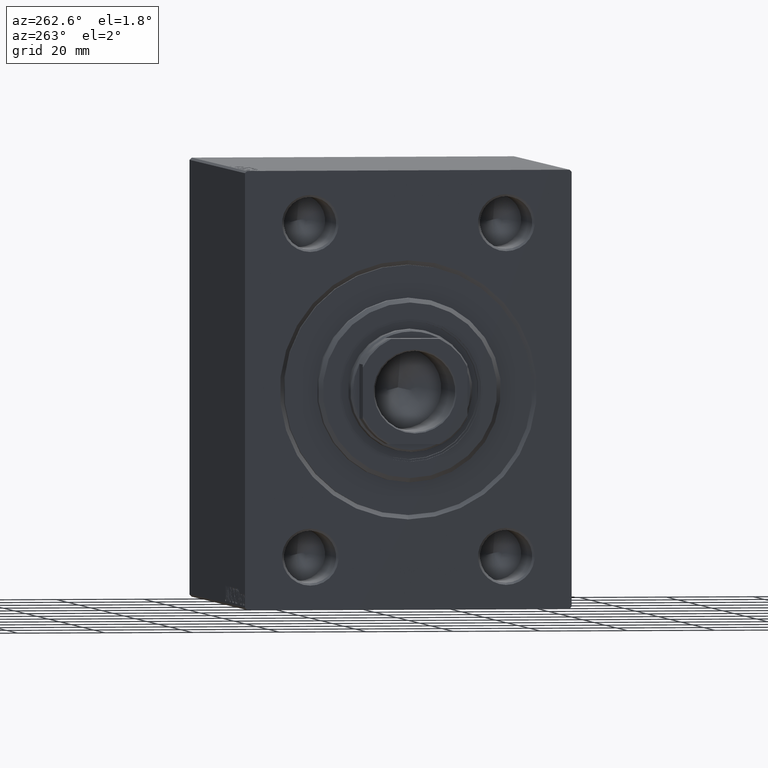
[diagram: clean part render]
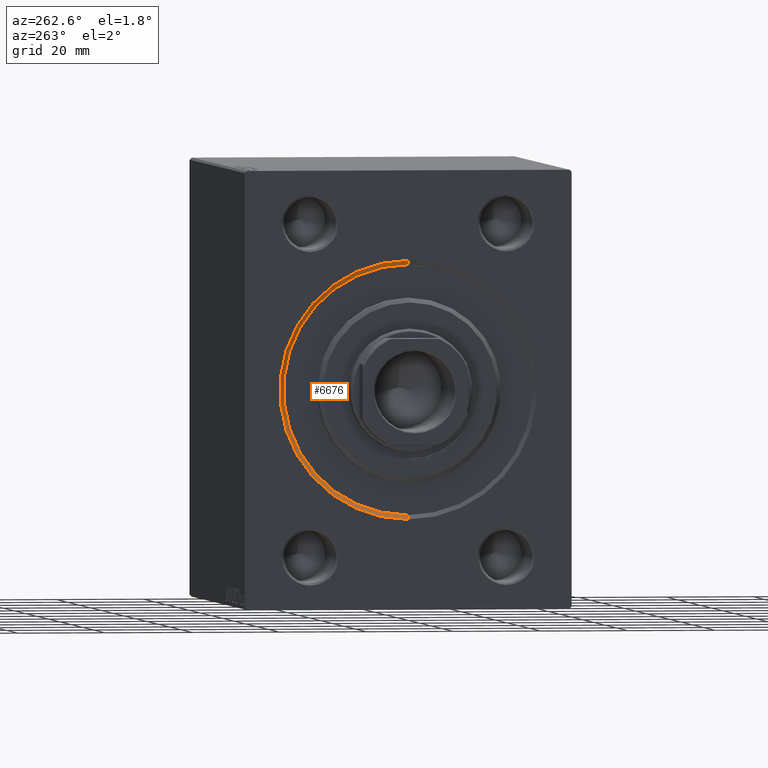
[diagram: same view with one face highlighted and labeled with its STEP entity id]
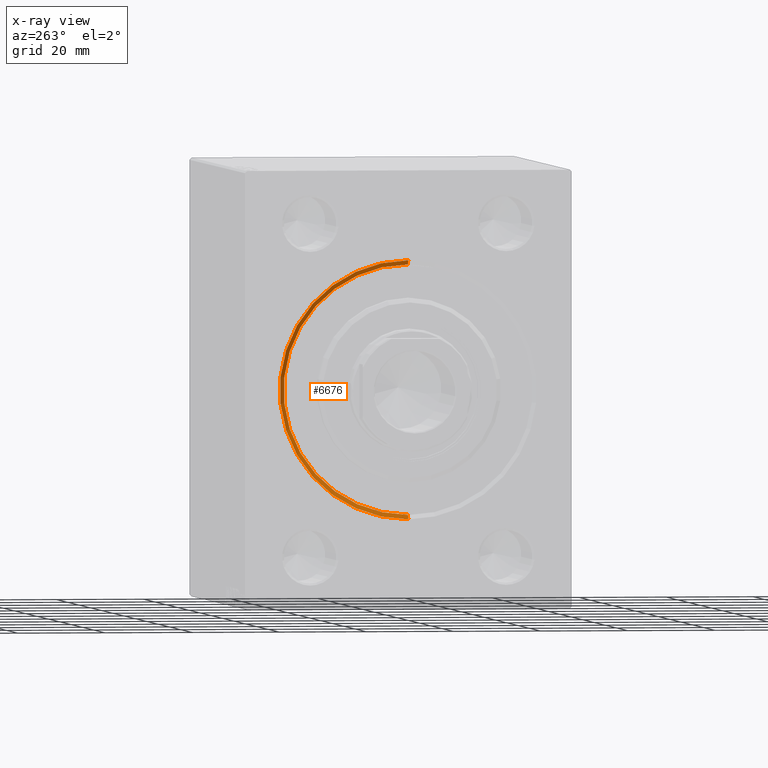
[diagram: x-ray of the same camera — body ghosted, the highlighted face saturated]
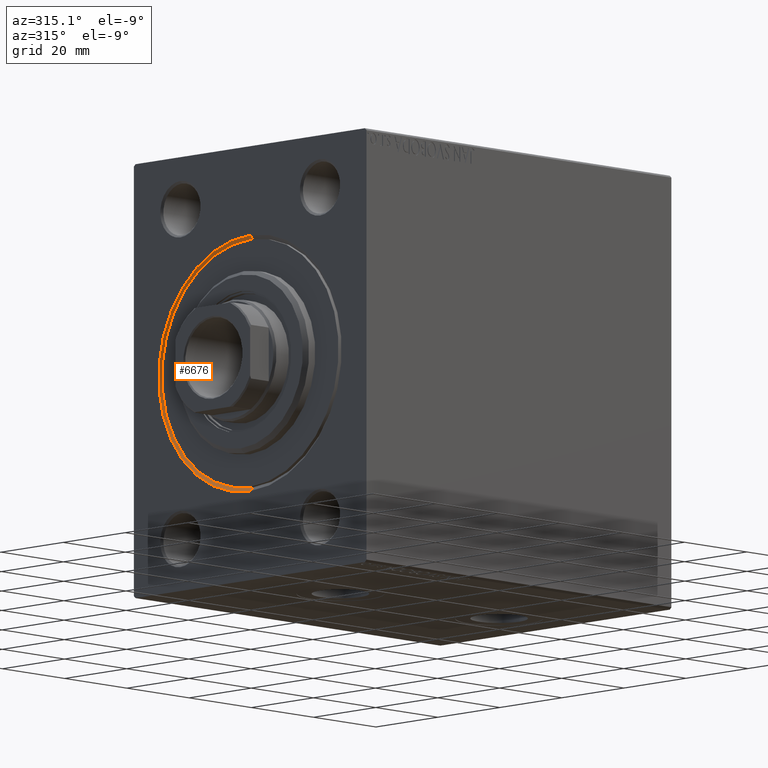
[diagram: same view with one face highlighted and labeled with its STEP entity id]
A machine part, auxiliary view. The second image highlights one B-rep face of the part: STEP entity #6676.
The next image is the same camera in x-ray: the body ghosted, the highlighted face saturated — about 0% of this face is hidden behind the body in this view.
A second angle (auxiliary view) of the same face is appended — the face is thin or edge-on in the first view.
In plain terms, the highlighted conical surface has half-angle 45 deg.
Its self-contained STEP definition (entity closure, byte-faithful):
#203 = CARTESIAN_POINT ( 'NONE',  ( 0.000000000000000000, 0.000000000000000000, 29.50000000000001421 ) ) ;
#1326 = DIRECTION ( 'NONE',  ( 0.000000000000000000, 0.000000000000000000, 1.000000000000000000 ) ) ;
#1954 = VERTEX_POINT ( 'NONE', #34050 ) ;
#1974 = VECTOR ( 'NONE', #15919, 1000.000000000000000 ) ;
#4931 = CARTESIAN_POINT ( 'NONE',  ( 1.000000000000018208, 0.000000000000000000, 0.000000000000000000 ) ) ;
#5858 = AXIS2_PLACEMENT_3D ( 'NONE', #4931, #32155, #1326 ) ;
#6676 = ADVANCED_FACE ( 'NONE', ( #18183 ), #18049, .F. ) ;
#7417 = DIRECTION ( 'NONE',  ( 0.000000000000000000, 0.000000000000000000, -1.000000000000000000 ) ) ;
#9177 = CARTESIAN_POINT ( 'NONE',  ( 1.000000000000018208, 3.490243377569956456E-15, -28.50000000000000000 ) ) ;
#11037 = DIRECTION ( 'NONE',  ( 1.000000000000000000, 0.000000000000000000, 0.000000000000000000 ) ) ;
#11173 = EDGE_CURVE ( 'NONE', #11329, #1954, #41928, .T. ) ;
#11329 = VERTEX_POINT ( 'NONE', #43823 ) ;
#12356 = ORIENTED_EDGE ( 'NONE', *, *, #41646, .T. ) ;
#12689 = AXIS2_PLACEMENT_3D ( 'NONE', #42312, #11037, #7417 ) ;
#15919 = DIRECTION ( 'NONE',  ( -0.7071067811865487940, 8.659560562354919300E-17, -0.7071067811865463515 ) ) ;
#16714 = EDGE_LOOP ( 'NONE', ( #17631, #20788, #12356, #19510 ) ) ;
#16740 = VERTEX_POINT ( 'NONE', #44239 ) ;
#17631 = ORIENTED_EDGE ( 'NONE', *, *, #38612, .F. ) ;
#18049 = CONICAL_SURFACE ( 'NONE', #5858, 28.50000000000000000, 0.7853981633974466137 ) ;
#18183 = FACE_OUTER_BOUND ( 'NONE', #16714, .T. ) ;
#19510 = ORIENTED_EDGE ( 'NONE', *, *, #29641, .F. ) ;
#20788 = ORIENTED_EDGE ( 'NONE', *, *, #11173, .F. ) ;
#21165 = CARTESIAN_POINT ( 'NONE',  ( 1.000000000000018208, 0.000000000000000000, 28.50000000000000000 ) ) ;
#22471 = LINE ( 'NONE', #9177, #1974 ) ;
#24322 = LINE ( 'NONE', #21165, #28635 ) ;
#25219 = VERTEX_POINT ( 'NONE', #203 ) ;
#27904 = CARTESIAN_POINT ( 'NONE',  ( 1.000000000000018208, 0.000000000000000000, 0.000000000000000000 ) ) ;
#28142 = DIRECTION ( 'NONE',  ( -0.7071067811865487940, 0.000000000000000000, 0.7071067811865463515 ) ) ;
#28635 = VECTOR ( 'NONE', #28142, 1000.000000000000000 ) ;
#29641 = EDGE_CURVE ( 'NONE', #16740, #25219, #40709, .T. ) ;
#32155 = DIRECTION ( 'NONE',  ( -1.000000000000000000, 0.000000000000000000, 0.000000000000000000 ) ) ;
#34050 = CARTESIAN_POINT ( 'NONE',  ( 1.000000000000018208, 3.490243377569956456E-15, -28.50000000000000000 ) ) ;
#34441 = DIRECTION ( 'NONE',  ( 0.000000000000000000, 0.000000000000000000, -1.000000000000000000 ) ) ;
#38324 = AXIS2_PLACEMENT_3D ( 'NONE', #27904, #41621, #34441 ) ;
#38612 = EDGE_CURVE ( 'NONE', #1954, #16740, #22471, .T. ) ;
#40709 = CIRCLE ( 'NONE', #12689, 29.50000000000001421 ) ;
#41621 = DIRECTION ( 'NONE',  ( -1.000000000000000000, 0.000000000000000000, 0.000000000000000000 ) ) ;
#41646 = EDGE_CURVE ( 'NONE', #11329, #25219, #24322, .T. ) ;
#41928 = CIRCLE ( 'NONE', #38324, 28.50000000000000000 ) ;
#42312 = CARTESIAN_POINT ( 'NONE',  ( 0.000000000000000000, 0.000000000000000000, 0.000000000000000000 ) ) ;
#43823 = CARTESIAN_POINT ( 'NONE',  ( 1.000000000000018208, 0.000000000000000000, 28.50000000000000000 ) ) ;
#44239 = CARTESIAN_POINT ( 'NONE',  ( 0.000000000000000000, 3.612708057484693970E-15, -29.50000000000001421 ) ) ;